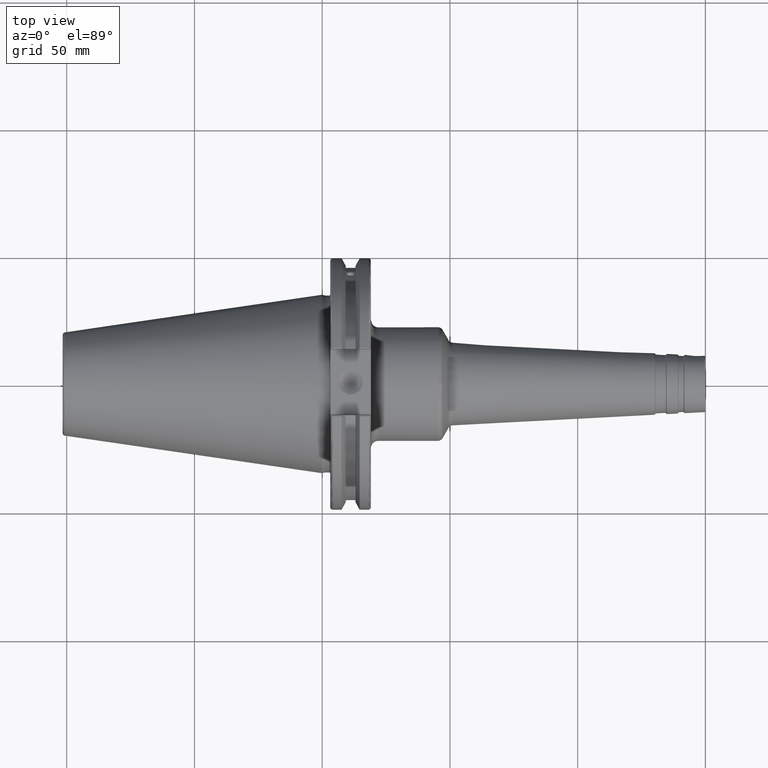
[diagram: clean part render]
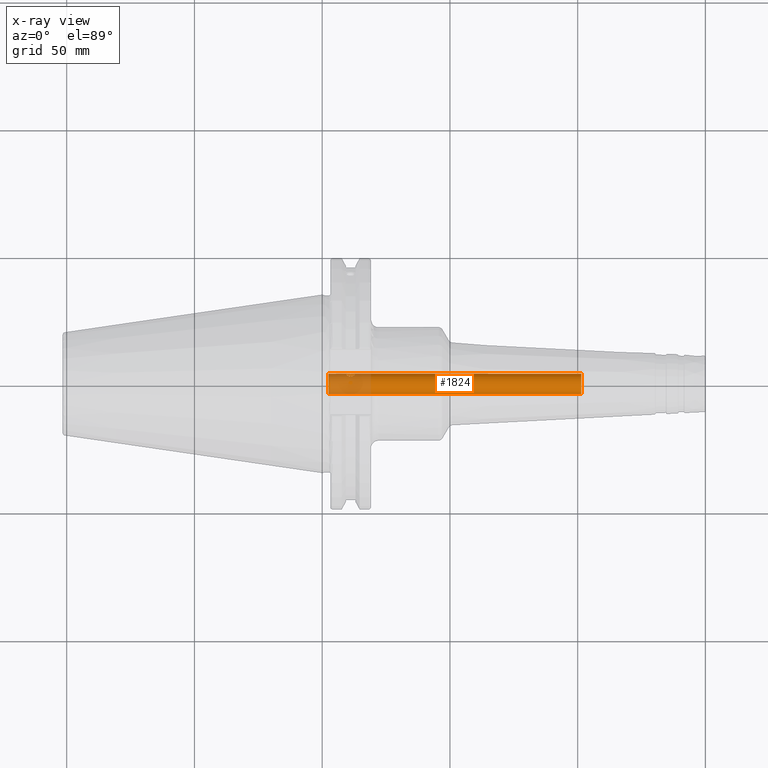
[diagram: x-ray — body ghosted, one internal face saturated and labeled with its STEP entity id]
A machine part, top view, then the same camera in x-ray: the body is ghosted and one INTERNAL B-rep face — a face not visible from any outside direction — is saturated and labeled: STEP entity #1824.
In plain terms, the highlighted cylindrical surface (bore or boss wall) has radius 4 mm, axis along (-1, 0, 0).
Its self-contained STEP definition (entity closure, byte-faithful):
#33=B_SPLINE_CURVE_WITH_KNOTS('',3,(#2912,#2913,#2914,#2915,#2916,#2917,
#2918,#2919,#2920,#2921,#2922,#2923,#2924,#2925,#2926,#2927,#2928,#2929,
#2930,#2931,#2932,#2933,#2934,#2935,#2936,#2937),.UNSPECIFIED.,.F.,.F.,
(4,2,2,2,2,2,2,2,2,2,2,2,4),(0.,0.0618742078368848,0.12374841567377,0.185556382934796,
0.247364350195823,0.30917231745685,0.370980284717877,0.432854492554762,
0.494728700391646,0.556602908228531,0.618477116065416,0.680285083326443,
0.74209305058747),.UNSPECIFIED.);
#34=B_SPLINE_CURVE_WITH_KNOTS('',3,(#2938,#2939,#2940,#2941,#2942,#2943,
#2944,#2945,#2946,#2947),.UNSPECIFIED.,.F.,.F.,(4,2,2,2,4),(0.74209305058747,
0.803901017848496,0.865708985109523,0.927583192946408,0.989457400783293),
 .UNSPECIFIED.);
#35=B_SPLINE_CURVE_WITH_KNOTS('',3,(#2950,#2951,#2952,#2953,#2954,#2955,
#2956,#2957,#2958,#2959),.UNSPECIFIED.,.F.,.F.,(4,2,2,2,4),(0.,0.0618742078368847,
0.123748415673769,0.185556382934796,0.247364350195823),.UNSPECIFIED.);
#36=B_SPLINE_CURVE_WITH_KNOTS('',3,(#2960,#2961,#2962,#2963,#2964,#2965,
#2966,#2967,#2968,#2969,#2970,#2971,#2972,#2973,#2974,#2975,#2976,#2977,
#2978,#2979,#2980,#2981,#2982,#2983,#2984,#2985),.UNSPECIFIED.,.F.,.F.,
(4,2,2,2,2,2,2,2,2,2,2,2,4),(0.247364350195823,0.30917231745685,0.370980284717877,
0.432854492554762,0.494728700391647,0.556602908228532,0.618477116065416,
0.680285083326443,0.74209305058747,0.803901017848497,0.865708985109524,
0.927583192946409,0.989457400783293),.UNSPECIFIED.);
#73=FACE_BOUND('',#521,.T.);
#74=FACE_BOUND('',#522,.T.);
#130=CYLINDRICAL_SURFACE('',#2018,4.);
#179=LINE('',#2909,#282);
#282=VECTOR('',#2371,4.);
#412=FACE_OUTER_BOUND('',#520,.T.);
#520=EDGE_LOOP('',(#1374,#1375,#1376,#1377));
#521=EDGE_LOOP('',(#1378,#1379));
#522=EDGE_LOOP('',(#1380,#1381));
#681=CIRCLE('',#2017,4.);
#682=CIRCLE('',#2019,4.);
#803=VERTEX_POINT('',#2903);
#804=VERTEX_POINT('',#2907);
#805=VERTEX_POINT('',#2910);
#806=VERTEX_POINT('',#2911);
#807=VERTEX_POINT('',#2948);
#808=VERTEX_POINT('',#2949);
#1016=EDGE_CURVE('',#803,#803,#681,.T.);
#1018=EDGE_CURVE('',#804,#804,#682,.T.);
#1019=EDGE_CURVE('',#804,#803,#179,.T.);
#1020=EDGE_CURVE('',#805,#806,#33,.T.);
#1021=EDGE_CURVE('',#806,#805,#34,.T.);
#1022=EDGE_CURVE('',#807,#808,#35,.T.);
#1023=EDGE_CURVE('',#808,#807,#36,.T.);
#1374=ORIENTED_EDGE('',*,*,#1018,.F.);
#1375=ORIENTED_EDGE('',*,*,#1019,.T.);
#1376=ORIENTED_EDGE('',*,*,#1016,.F.);
#1377=ORIENTED_EDGE('',*,*,#1019,.F.);
#1378=ORIENTED_EDGE('',*,*,#1020,.F.);
#1379=ORIENTED_EDGE('',*,*,#1021,.F.);
#1380=ORIENTED_EDGE('',*,*,#1022,.F.);
#1381=ORIENTED_EDGE('',*,*,#1023,.F.);
#1824=ADVANCED_FACE('',(#412,#73,#74),#130,.F.);
#2017=AXIS2_PLACEMENT_3D('',#2904,#2364,#2365);
#2018=AXIS2_PLACEMENT_3D('',#2906,#2367,#2368);
#2019=AXIS2_PLACEMENT_3D('',#2908,#2369,#2370);
#2364=DIRECTION('center_axis',(-1.,0.,0.));
#2365=DIRECTION('ref_axis',(0.,0.,1.));
#2367=DIRECTION('center_axis',(-1.,0.,0.));
#2368=DIRECTION('ref_axis',(0.,0.,1.));
#2369=DIRECTION('center_axis',(1.,0.,0.));
#2370=DIRECTION('ref_axis',(0.,0.,1.));
#2371=DIRECTION('',(1.,0.,0.));
#2903=CARTESIAN_POINT('',(101.4,-4.89858719658942E-16,-4.00000000000001));
#2904=CARTESIAN_POINT('Origin',(101.4,0.,0.));
#2906=CARTESIAN_POINT('Origin',(-0.0999999999999979,0.,0.));
#2907=CARTESIAN_POINT('',(2.45580917843603,4.89858719658941E-16,-4.));
#2908=CARTESIAN_POINT('Origin',(2.45580917843603,0.,0.));
#2909=CARTESIAN_POINT('',(-0.0999999999999979,-4.89858719658941E-16,-4.));
#2910=CARTESIAN_POINT('',(11.1341,3.99070482512933,-0.272534399093855));
#2911=CARTESIAN_POINT('',(9.5131,3.75877048314363,1.36808057330268));
#2912=CARTESIAN_POINT('Ctrl Pts',(11.1341,3.99070482512933,-0.272534399093856));
#2913=CARTESIAN_POINT('Ctrl Pts',(11.3403473594563,3.99070482512933,-0.272534399093856));
#2914=CARTESIAN_POINT('Ctrl Pts',(11.5584520062585,3.99457216119088,-0.226743676053499));
#2915=CARTESIAN_POINT('Ctrl Pts',(11.9569734476557,4.00071729112292,-0.0477496275625652));
#2916=CARTESIAN_POINT('Ctrl Pts',(12.1376373648484,4.00187016626144,0.0849398902486694));
#2917=CARTESIAN_POINT('Ctrl Pts',(12.4228500681296,3.98448362830596,0.38212872721556));
#2918=CARTESIAN_POINT('Ctrl Pts',(12.5472588058457,3.96471483330365,0.567253235362117));
#2919=CARTESIAN_POINT('Ctrl Pts',(12.7134451981473,3.88747363651699,0.963477385751782));
#2920=CARTESIAN_POINT('Ctrl Pts',(12.7551,3.82923571588126,1.17447893749947));
#2921=CARTESIAN_POINT('Ctrl Pts',(12.7551,3.68830525040603,1.5616822091059));
#2922=CARTESIAN_POINT('Ctrl Pts',(12.7134451981473,3.59728890279979,1.76075338911025));
#2923=CARTESIAN_POINT('Ctrl Pts',(12.5472588058457,3.40177111784901,2.11392838199762));
#2924=CARTESIAN_POINT('Ctrl Pts',(12.4228500681296,3.29791915332176,2.26844911923433));
#2925=CARTESIAN_POINT('Ctrl Pts',(12.1376373648484,3.12020871196816,2.50728482752294));
#2926=CARTESIAN_POINT('Ctrl Pts',(11.9569734476557,3.03403438039035,2.60818984144782));
#2927=CARTESIAN_POINT('Ctrl Pts',(11.5584520062585,2.91427178117606,2.74135722426544));
#2928=CARTESIAN_POINT('Ctrl Pts',(11.3403473594563,2.88187552046753,2.77394907749406));
#2929=CARTESIAN_POINT('Ctrl Pts',(10.9278526405437,2.88187552046753,2.77394907749406));
#2930=CARTESIAN_POINT('Ctrl Pts',(10.7097479937416,2.91427178117606,2.74135722426544));
#2931=CARTESIAN_POINT('Ctrl Pts',(10.3112265523443,3.03403438039035,2.60818984144782));
#2932=CARTESIAN_POINT('Ctrl Pts',(10.1305626351516,3.12020871196816,2.50728482752294));
#2933=CARTESIAN_POINT('Ctrl Pts',(9.84534993187044,3.29791915332176,2.26844911923433));
#2934=CARTESIAN_POINT('Ctrl Pts',(9.72094119415433,3.40177111784901,2.11392838199762));
#2935=CARTESIAN_POINT('Ctrl Pts',(9.55475480185271,3.59728890279979,1.76075338911025));
#2936=CARTESIAN_POINT('Ctrl Pts',(9.5131,3.68830525040602,1.56168220910589));
#2937=CARTESIAN_POINT('Ctrl Pts',(9.5131,3.75877048314363,1.36808057330268));
#2938=CARTESIAN_POINT('Ctrl Pts',(9.5131,3.75877048314363,1.36808057330268));
#2939=CARTESIAN_POINT('Ctrl Pts',(9.5131,3.82923571588125,1.17447893749947));
#2940=CARTESIAN_POINT('Ctrl Pts',(9.55475480185271,3.88747363651699,0.963477385751782));
#2941=CARTESIAN_POINT('Ctrl Pts',(9.72094119415433,3.96471483330365,0.567253235362118));
#2942=CARTESIAN_POINT('Ctrl Pts',(9.84534993187044,3.98448362830596,0.38212872721556));
#2943=CARTESIAN_POINT('Ctrl Pts',(10.1305626351516,4.00187016626144,0.0849398902486694));
#2944=CARTESIAN_POINT('Ctrl Pts',(10.3112265523443,4.00071729112292,-0.0477496275625652));
#2945=CARTESIAN_POINT('Ctrl Pts',(10.7097479937416,3.99457216119088,-0.226743676053499));
#2946=CARTESIAN_POINT('Ctrl Pts',(10.9278526405437,3.99070482512933,-0.272534399093855));
#2947=CARTESIAN_POINT('Ctrl Pts',(11.1341,3.99070482512933,-0.272534399093855));
#2948=CARTESIAN_POINT('',(11.1341,-2.88187552046753,-2.77394907749404));
#2949=CARTESIAN_POINT('',(9.5131,-3.75877048314364,-1.36808057330267));
#2950=CARTESIAN_POINT('Ctrl Pts',(11.1341,-2.88187552046753,-2.77394907749404));
#2951=CARTESIAN_POINT('Ctrl Pts',(10.9278526405437,-2.88187552046753,-2.77394907749404));
#2952=CARTESIAN_POINT('Ctrl Pts',(10.7097479937416,-2.91427178117607,-2.74135722426543));
#2953=CARTESIAN_POINT('Ctrl Pts',(10.3112265523443,-3.03403438039036,-2.60818984144781));
#2954=CARTESIAN_POINT('Ctrl Pts',(10.1305626351516,-3.12020871196814,-2.50728482752292));
#2955=CARTESIAN_POINT('Ctrl Pts',(9.84534993187044,-3.29791915332173,-2.26844911923431));
#2956=CARTESIAN_POINT('Ctrl Pts',(9.72094119415433,-3.40177111784902,-2.11392838199761));
#2957=CARTESIAN_POINT('Ctrl Pts',(9.55475480185271,-3.59728890279979,-1.76075338911025));
#2958=CARTESIAN_POINT('Ctrl Pts',(9.5131,-3.68830525040602,-1.56168220910588));
#2959=CARTESIAN_POINT('Ctrl Pts',(9.5131,-3.75877048314364,-1.36808057330267));
#2960=CARTESIAN_POINT('Ctrl Pts',(9.5131,-3.75877048314364,-1.36808057330267));
#2961=CARTESIAN_POINT('Ctrl Pts',(9.5131,-3.82923571588125,-1.17447893749946));
#2962=CARTESIAN_POINT('Ctrl Pts',(9.55475480185272,-3.887473636517,-0.963477385751766));
#2963=CARTESIAN_POINT('Ctrl Pts',(9.72094119415433,-3.96471483330365,-0.567253235362101));
#2964=CARTESIAN_POINT('Ctrl Pts',(9.84534993187044,-3.98448362830593,-0.382128727215542));
#2965=CARTESIAN_POINT('Ctrl Pts',(10.1305626351516,-4.00187016626141,-0.0849398902486509));
#2966=CARTESIAN_POINT('Ctrl Pts',(10.3112265523443,-4.00071729112292,0.0477496275625839));
#2967=CARTESIAN_POINT('Ctrl Pts',(10.7097479937416,-3.99457216119088,0.226743676053518));
#2968=CARTESIAN_POINT('Ctrl Pts',(10.9278526405437,-3.99070482512932,0.272534399093877));
#2969=CARTESIAN_POINT('Ctrl Pts',(11.3403473594563,-3.99070482512932,0.272534399093877));
#2970=CARTESIAN_POINT('Ctrl Pts',(11.5584520062585,-3.99457216119088,0.226743676053518));
#2971=CARTESIAN_POINT('Ctrl Pts',(11.9569734476557,-4.00071729112292,0.0477496275625839));
#2972=CARTESIAN_POINT('Ctrl Pts',(12.1376373648484,-4.00187016626141,-0.0849398902486508));
#2973=CARTESIAN_POINT('Ctrl Pts',(12.4228500681296,-3.98448362830593,-0.382128727215542));
#2974=CARTESIAN_POINT('Ctrl Pts',(12.5472588058457,-3.96471483330365,-0.567253235362101));
#2975=CARTESIAN_POINT('Ctrl Pts',(12.7134451981473,-3.887473636517,-0.963477385751767));
#2976=CARTESIAN_POINT('Ctrl Pts',(12.7551,-3.82923571588124,-1.17447893749945));
#2977=CARTESIAN_POINT('Ctrl Pts',(12.7551,-3.68830525040601,-1.56168220910588));
#2978=CARTESIAN_POINT('Ctrl Pts',(12.7134451981473,-3.59728890279979,-1.76075338911025));
#2979=CARTESIAN_POINT('Ctrl Pts',(12.5472588058457,-3.40177111784902,-2.11392838199761));
#2980=CARTESIAN_POINT('Ctrl Pts',(12.4228500681296,-3.29791915332173,-2.26844911923431));
#2981=CARTESIAN_POINT('Ctrl Pts',(12.1376373648484,-3.12020871196814,-2.50728482752292));
#2982=CARTESIAN_POINT('Ctrl Pts',(11.9569734476557,-3.03403438039036,-2.60818984144781));
#2983=CARTESIAN_POINT('Ctrl Pts',(11.5584520062584,-2.91427178117607,-2.74135722426543));
#2984=CARTESIAN_POINT('Ctrl Pts',(11.3403473594563,-2.88187552046752,-2.77394907749404));
#2985=CARTESIAN_POINT('Ctrl Pts',(11.1341,-2.88187552046752,-2.77394907749404));